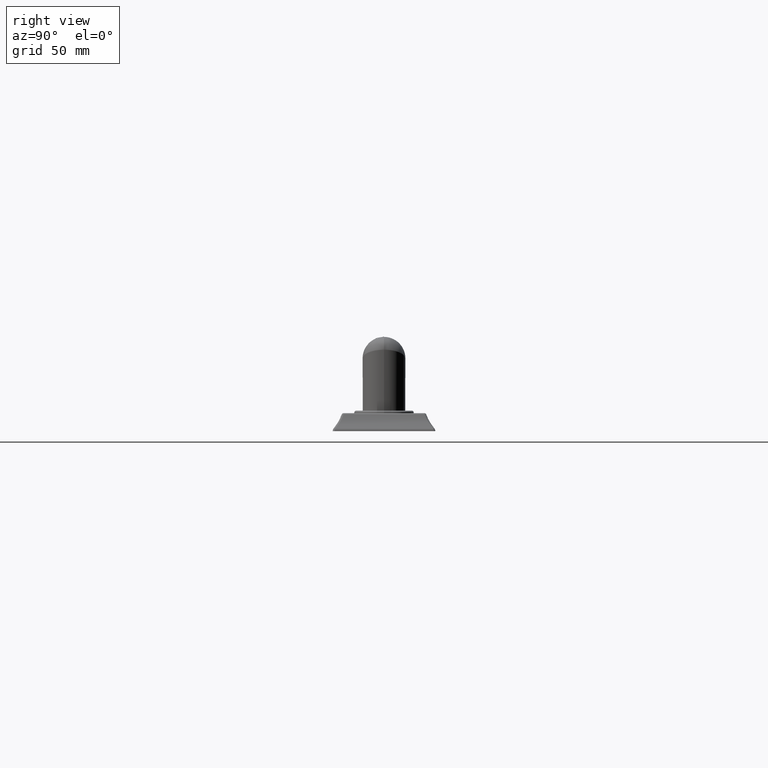
[diagram: clean part render]
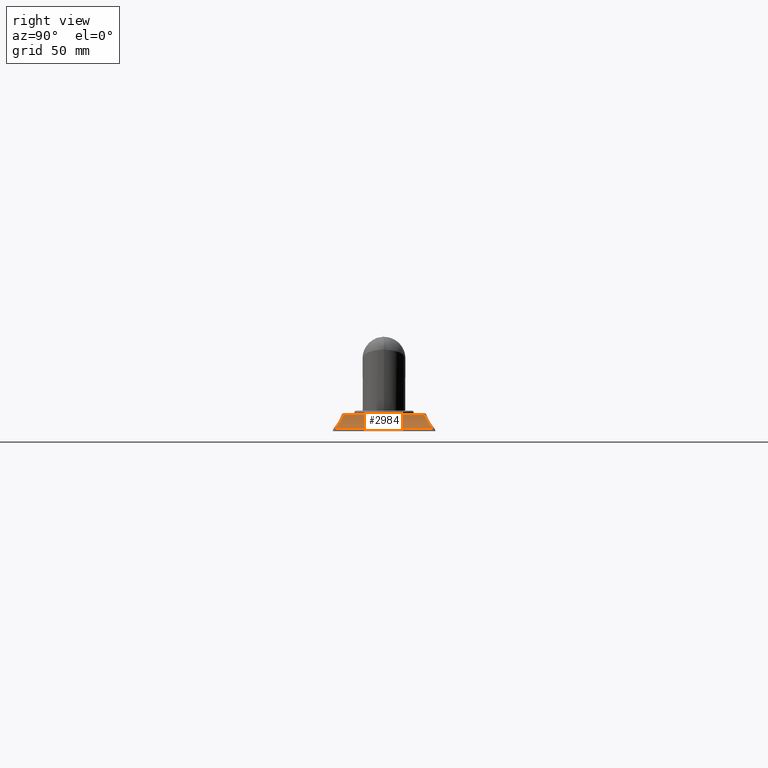
[diagram: same view with one face highlighted and labeled with its STEP entity id]
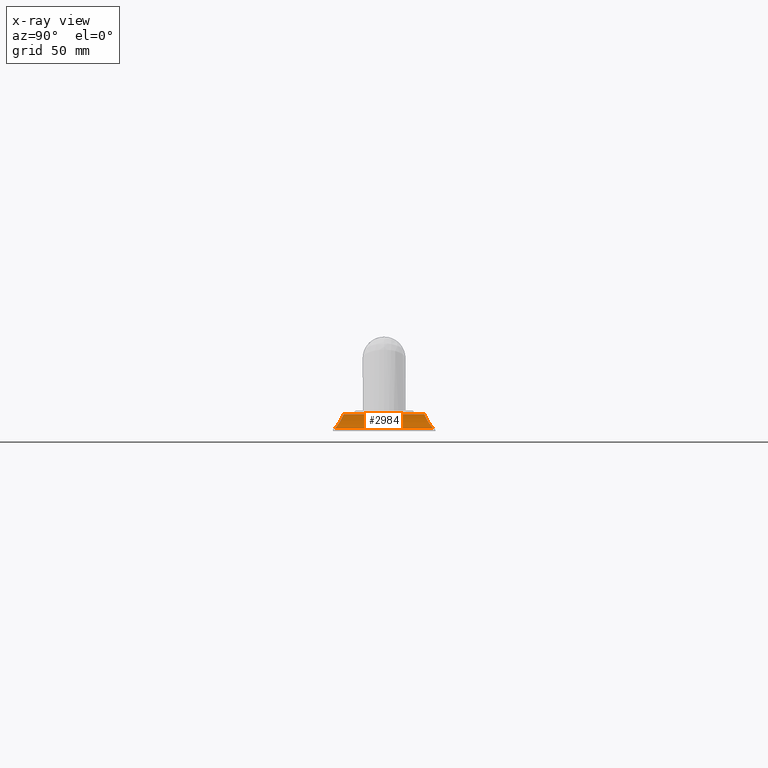
[diagram: x-ray of the same camera — body ghosted, the highlighted face saturated]
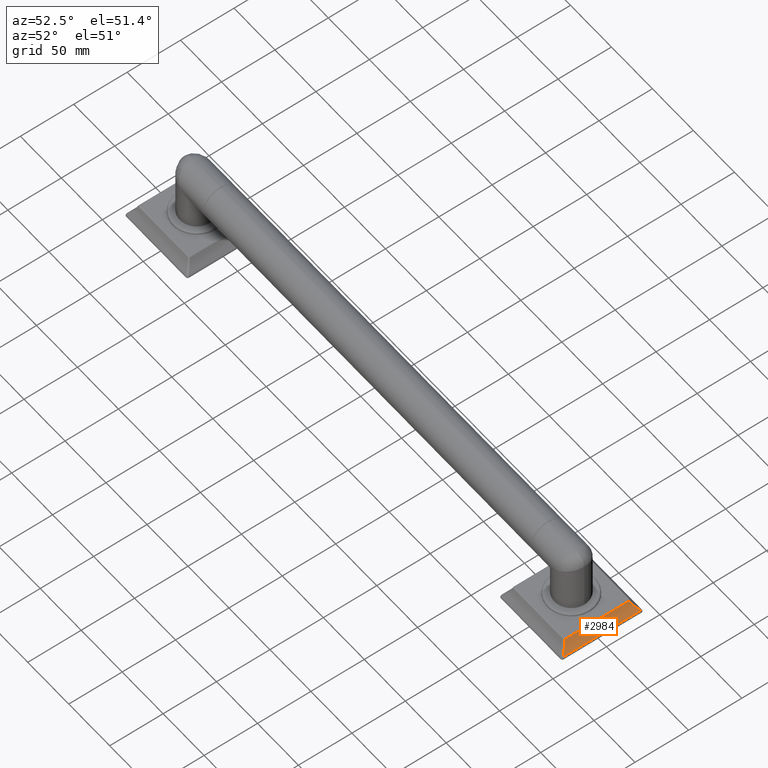
[diagram: same view with one face highlighted and labeled with its STEP entity id]
A machine part, right view. The second image highlights one B-rep face of the part: STEP entity #2984.
The next image is the same camera in x-ray: the body ghosted, the highlighted face saturated — about 0% of this face is hidden behind the body in this view.
A second angle (auxiliary view) of the same face is appended — the face is thin or edge-on in the first view.
In plain terms, the highlighted cylindrical surface (partial cylindrical patch) has radius 34.29 mm, axis along (0, 1, 0).
Its self-contained STEP definition (entity closure, byte-faithful):
#917=DIRECTION('',(-1.502067511122E-7,1.E0,2.279395977244E-7));
#918=VECTOR('',#917,2.358673076620E0);
#919=CARTESIAN_POINT('',(1.923567422722E1,-1.179336796102E0,4.856407698797E-1));
#920=LINE('',#919,#918);
#921=CARTESIAN_POINT('',(1.947061646050E1,1.424720559449E0,8.051392725293E-2));
#922=CARTESIAN_POINT('',(1.944870879056E1,1.401839321612E0,1.065311865730E-1));
#923=CARTESIAN_POINT('',(1.940755423925E1,1.358855822367E0,1.594041000266E-1));
#924=CARTESIAN_POINT('',(1.935374236553E1,1.302651400949E0,2.400605725854E-1));
#925=CARTESIAN_POINT('',(1.930727800862E1,1.254123274006E0,3.216254469271E-1));
#926=CARTESIAN_POINT('',(1.926774293847E1,1.212830067333E0,4.035783615075E-1));
#927=CARTESIAN_POINT('',(1.924567164396E1,1.189778545562E0,4.583537083495E-1));
#928=CARTESIAN_POINT('',(1.923567387293E1,1.179336280517E0,4.856413075147E-1));
#930=DIRECTION('',(1.852760701628E-12,1.E0,-2.201249162901E-12));
#931=VECTOR('',#930,2.849441118899E0);
#932=CARTESIAN_POINT('',(1.947061646049E1,-1.424720559450E0,8.051392725920E-2));
#933=LINE('',#932,#931);
#934=CARTESIAN_POINT('',(1.923567422722E1,-1.179336796102E0,4.856407698797E-1));
#935=CARTESIAN_POINT('',(1.924567014464E1,-1.189776787241E0,4.583572800390E-1));
#936=CARTESIAN_POINT('',(1.926773806961E1,-1.212825558901E0,4.035908520890E-1));
#937=CARTESIAN_POINT('',(1.930726077797E1,-1.254104474207E0,3.216588755972E-1));
#938=CARTESIAN_POINT('',(1.935372377215E1,-1.302632750904E0,2.400900405121E-1));
#939=CARTESIAN_POINT('',(1.940754361316E1,-1.358844365009E0,1.594181789832E-1));
#940=CARTESIAN_POINT('',(1.944870463253E1,-1.401834884787E0,1.065359394296E-1));
#941=CARTESIAN_POINT('',(1.947061646049E1,-1.424720559450E0,8.051392725920E-2));
#1326=CARTESIAN_POINT('',(1.947061646049E1,-1.424720559450E0,
8.051392725920E-2));
#1327=CARTESIAN_POINT('',(1.947061646050E1,1.424720559449E0,8.051392725293E-2));
#1328=VERTEX_POINT('',#1326);
#1329=VERTEX_POINT('',#1327);
#1348=CARTESIAN_POINT('',(1.923567481981E1,-1.179337065314E0,
4.856401524991E-1));
#1349=VERTEX_POINT('',#1348);
#1350=CARTESIAN_POINT('',(1.923567387293E1,1.179336280517E0,4.856413075147E-1));
#1351=VERTEX_POINT('',#1350);
#2971=CARTESIAN_POINT('',(2.050327423429E1,-1.5E0,9.500643411043E-1));
#2972=DIRECTION('',(0.E0,1.E0,0.E0));
#2973=DIRECTION('',(-1.E0,0.E0,0.E0));
#2974=AXIS2_PLACEMENT_3D('',#2971,#2972,#2973);
#2975=CYLINDRICAL_SURFACE('',#2974,1.35E0);
#2976=ORIENTED_EDGE('',*,*,#2779,.T.);
#2978=ORIENTED_EDGE('',*,*,#2977,.F.);
#2980=ORIENTED_EDGE('',*,*,#2979,.F.);
#2981=ORIENTED_EDGE('',*,*,#2963,.F.);
#2982=EDGE_LOOP('',(#2976,#2978,#2980,#2981));
#2983=FACE_OUTER_BOUND('',#2982,.F.);
#2984=ADVANCED_FACE('',(#2983),#2975,.F.);
#929=B_SPLINE_CURVE_WITH_KNOTS('',3,(#921,#922,#923,#924,#925,#926,#927,#928),
.UNSPECIFIED.,.F.,.F.,(4,1,1,1,1,4),(0.E0,2.E-1,4.E-1,6.E-1,8.E-1,1.E0),
.UNSPECIFIED.);
#942=B_SPLINE_CURVE_WITH_KNOTS('',3,(#934,#935,#936,#937,#938,#939,#940,#941),
.UNSPECIFIED.,.F.,.F.,(4,1,1,1,1,4),(0.E0,2.E-1,4.E-1,6.E-1,8.E-1,1.E0),
.UNSPECIFIED.);
#2779=EDGE_CURVE('',#1349,#1351,#920,.T.);
#2963=EDGE_CURVE('',#1349,#1328,#942,.T.);
#2977=EDGE_CURVE('',#1329,#1351,#929,.T.);
#2979=EDGE_CURVE('',#1328,#1329,#933,.T.);